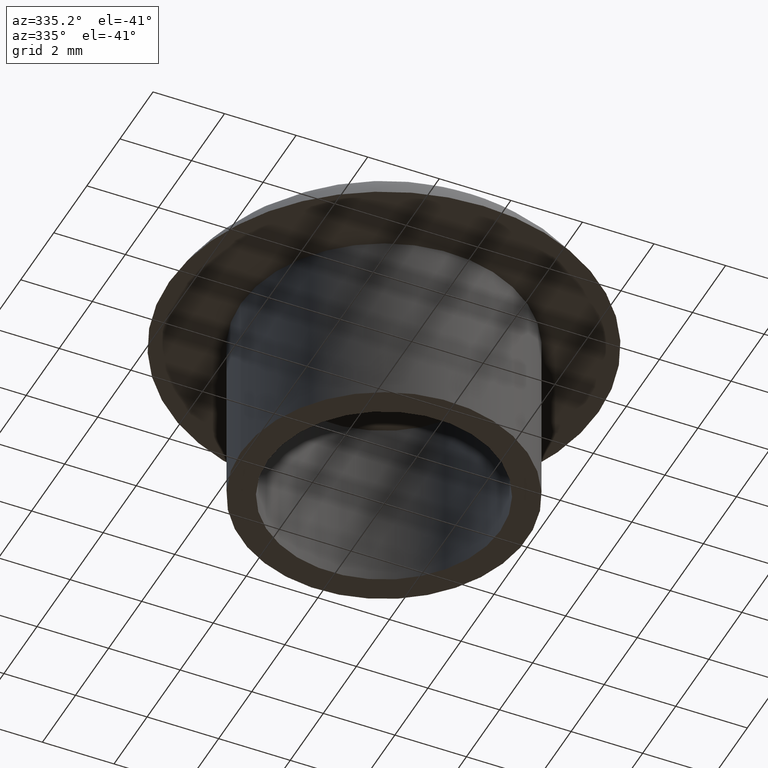
[diagram: clean part render]
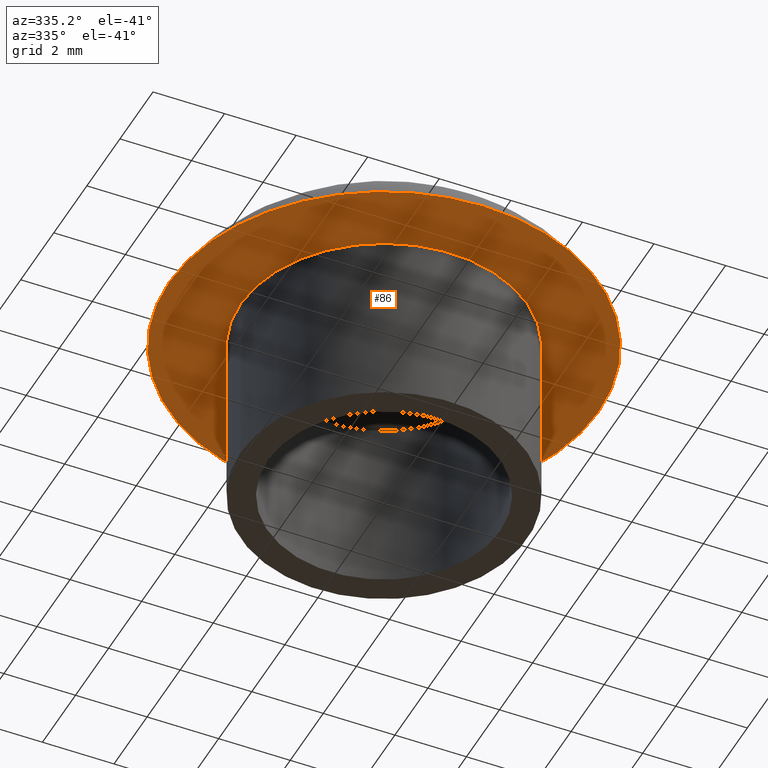
[diagram: same view with one face highlighted and labeled with its STEP entity id]
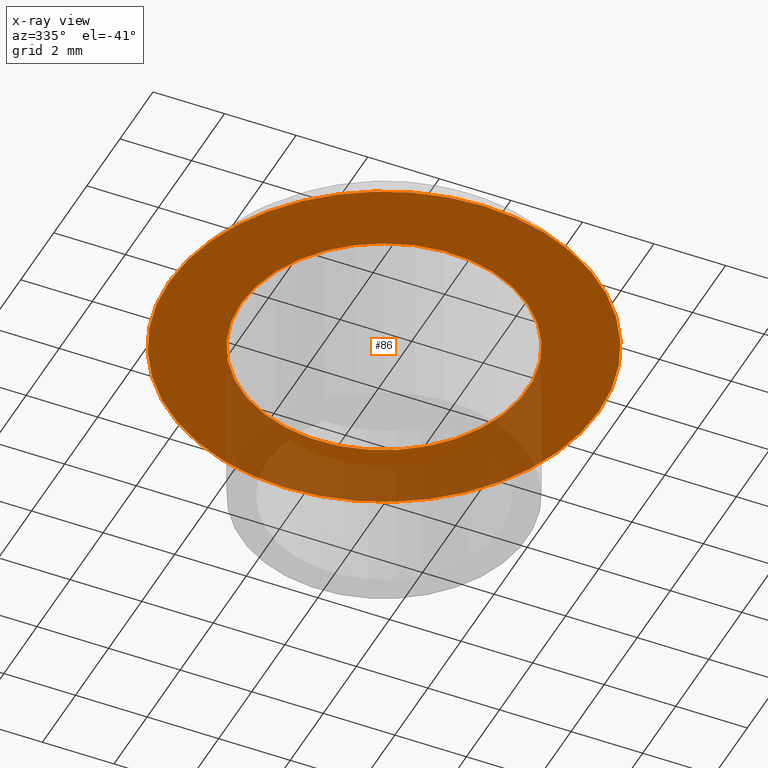
[diagram: x-ray of the same camera — body ghosted, the highlighted face saturated]
A machine part, auxiliary view. The second image highlights one B-rep face of the part: STEP entity #86.
The next image is the same camera in x-ray: the body ghosted, the highlighted face saturated — about 26% of this face is hidden behind the body in this view.
In plain terms, the highlighted planar face has unit normal (0, 0, 1).
Its self-contained STEP definition (entity closure, byte-faithful):
#18=PLANE('',#99);
#24=FACE_BOUND('',#39,.T.);
#28=FACE_OUTER_BOUND('',#38,.T.);
#38=EDGE_LOOP('',(#71,#72));
#39=EDGE_LOOP('',(#73));
#46=CIRCLE('',#97,4.);
#47=CIRCLE('',#100,6.);
#48=CIRCLE('',#101,6.);
#53=VERTEX_POINT('',#142);
#54=VERTEX_POINT('',#146);
#55=VERTEX_POINT('',#147);
#60=EDGE_CURVE('',#53,#53,#46,.T.);
#61=EDGE_CURVE('',#54,#55,#47,.T.);
#62=EDGE_CURVE('',#55,#54,#48,.T.);
#71=ORIENTED_EDGE('',*,*,#61,.T.);
#72=ORIENTED_EDGE('',*,*,#62,.T.);
#73=ORIENTED_EDGE('',*,*,#60,.T.);
#86=ADVANCED_FACE('',(#28,#24),#18,.F.);
#97=AXIS2_PLACEMENT_3D('',#143,#117,#118);
#99=AXIS2_PLACEMENT_3D('',#145,#121,#122);
#100=AXIS2_PLACEMENT_3D('',#148,#123,#124);
#101=AXIS2_PLACEMENT_3D('',#149,#125,#126);
#117=DIRECTION('center_axis',(0.,0.,1.));
#118=DIRECTION('ref_axis',(1.,0.,0.));
#121=DIRECTION('center_axis',(0.,0.,1.));
#122=DIRECTION('ref_axis',(1.,0.,0.));
#123=DIRECTION('center_axis',(0.,0.,-1.));
#124=DIRECTION('ref_axis',(-1.,0.,0.));
#125=DIRECTION('center_axis',(0.,0.,-1.));
#126=DIRECTION('ref_axis',(-1.,0.,0.));
#142=CARTESIAN_POINT('',(-4.,4.89858719658941E-16,0.));
#143=CARTESIAN_POINT('Origin',(0.,0.,0.));
#145=CARTESIAN_POINT('Origin',(-3.69627624575467E-16,-1.54197642309049E-16,
0.));
#146=CARTESIAN_POINT('',(6.,7.34788079488412E-16,0.));
#147=CARTESIAN_POINT('',(-6.,0.,0.));
#148=CARTESIAN_POINT('Origin',(0.,0.,0.));
#149=CARTESIAN_POINT('Origin',(0.,0.,0.));